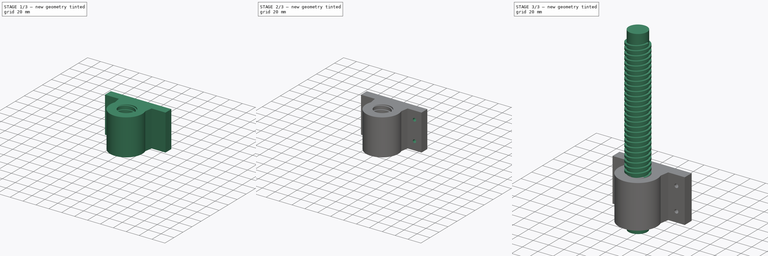
[diagram: build sequence overview — one tinted view per stage of 3, left to right]
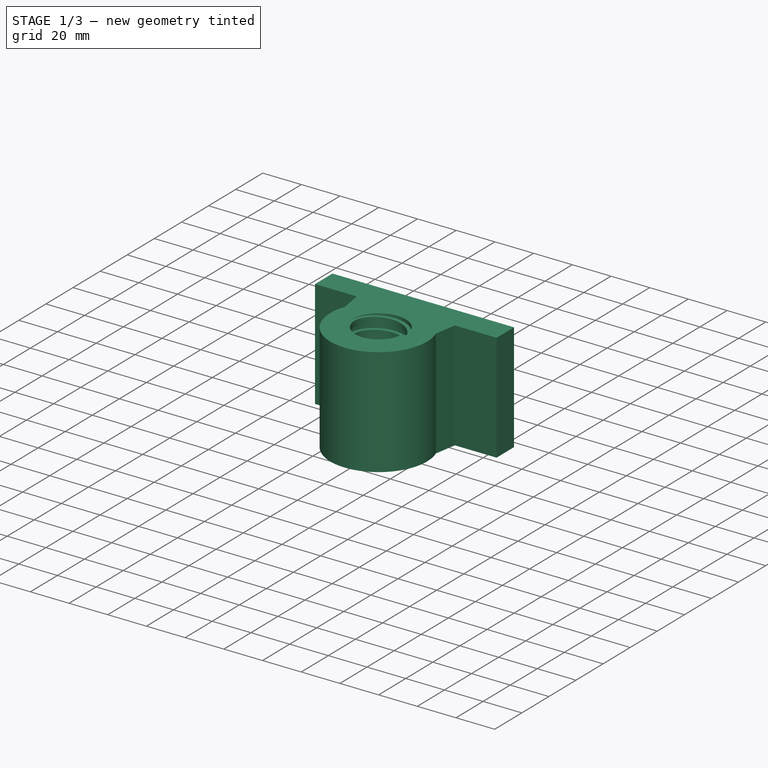
[diagram: stage 1 of 3 — iso view after this stage's code; geometry added in this stage tinted green]
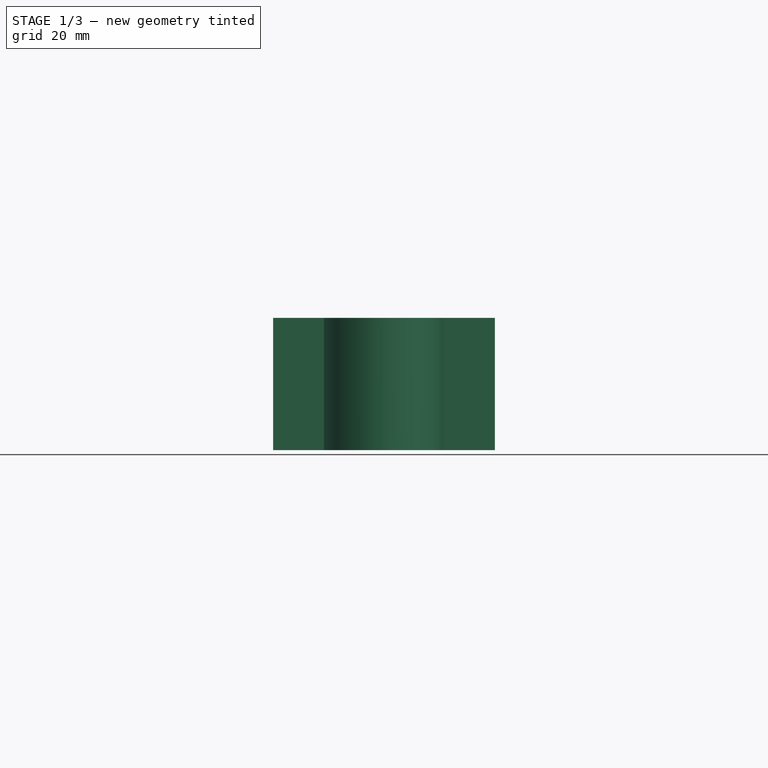
[diagram: stage 1 of 3 — front view after this stage's code; geometry added in this stage tinted green]
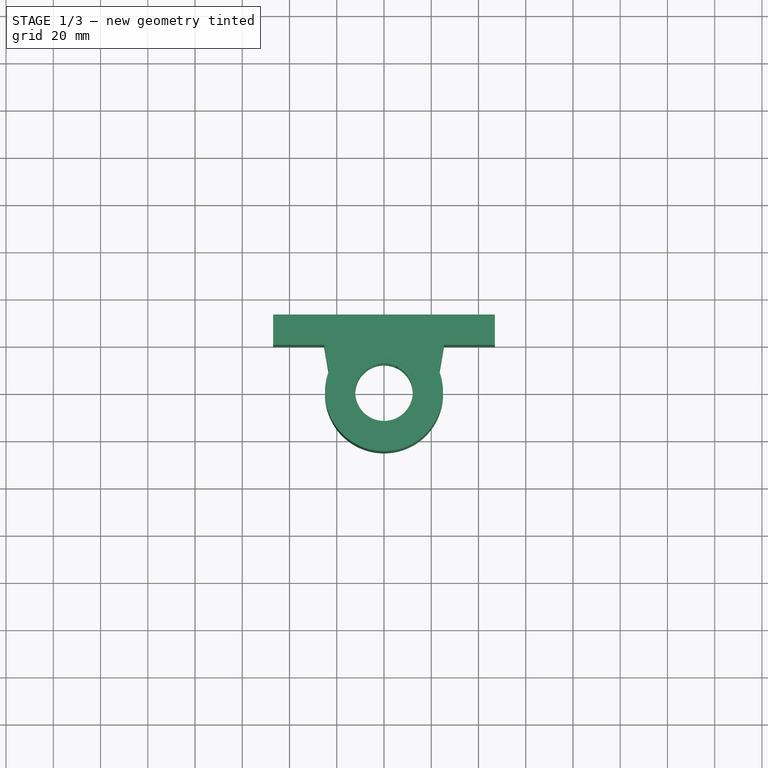
[diagram: stage 1 of 3 — top view after this stage's code; geometry added in this stage tinted green]
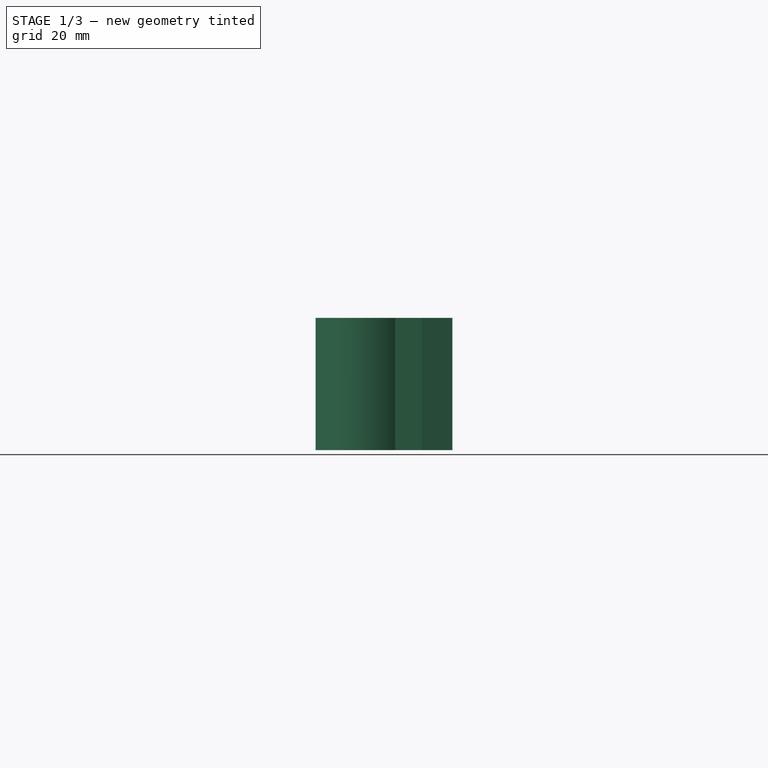
[diagram: stage 1 of 3 — right view after this stage's code; geometry added in this stage tinted green]
FCSTD DOCUMENT  (FreeCAD 0.21R33771 (Git))
Label: ACME
License: All rights reserved
LicenseURL: http://en.wikipedia.org/wiki/All_rights_reserved
objects: Sketcher::SketchObject×5, Part::Helix×2, PartDesign::Pad×2, PartDesign::ShapeBinder×2, PartDesign::CoordinateSystem×2, PartDesign::Body×2, App::Part×2, PartDesign::FeatureBase×1, PartDesign::AdditivePipe×1, PartDesign::SubtractivePipe×1, PartDesign::Pocket×1
note: 24 computed .brp shape members not serialized (recipe doc carries the construction recipe); baked Part::Feature solids carry a one-line shape summary decoded from their .brp

FEATURE [Sketcher::SketchObject] Sketch002
  AttachmentOffset = pos=(0,0,2) rot=(0,0,1;0rad)
  FullyConstrained = true
  MapMode = 5
  Placement = pos=(0,0,2) rot=(0,0,1;0rad)
  Support = -> [XY_Plane003]
  sketch-geometry (9):
    g0: LineSegment StartX=-46.9145 StartY=32.8571 StartZ=0 EndX=46.9145 EndY=32.8571 EndZ=0
    g1: LineSegment StartX=46.9145 StartY=32.8571 StartZ=0 EndX=46.9145 EndY=20.0023 EndZ=0
    g2: LineSegment StartX=46.9145 StartY=20.0023 StartZ=0 EndX=25.3779 EndY=20.0023 EndZ=0
    g3: LineSegment StartX=-46.9145 StartY=20.0023 StartZ=0 EndX=-46.9145 EndY=32.8571 EndZ=0
    g4: LineSegment StartX=-25.3779 StartY=20.0023 StartZ=0 EndX=-46.9145 EndY=20.0023 EndZ=0
    g5: ArcOfCircle CenterX=0 CenterY=0 CenterZ=0 NormalX=0 NormalY=0 NormalZ=1 AngleXU=0 Radius=25 StartAngle=2.78845 EndAngle=6.63632
    g6: Circle CenterX=0 CenterY=0 CenterZ=0 NormalX=0 NormalY=0 NormalZ=1 AngleXU=0 Radius=12.175
    g7: LineSegment StartX=-25.3779 StartY=20.0023 StartZ=0 EndX=-23.4573 EndY=8.6461 EndZ=0
    g8: LineSegment StartX=25.3779 StartY=20.0023 StartZ=0 EndX=23.4573 EndY=8.6461 EndZ=0
  constraints (25):
    c: Diameter(g5) = 50
    c: Coincident(g6,g5)
    c: Diameter(g6) = 24.35
    c: Horizontal(g4)
    c: DistanceY(g3,g3) = 12.8548
    c: Coincident(g3,g4)
    c: Horizontal(g3,g1)
    c: Horizontal(g2)
    c: DistanceX(g3,g1) = 93.8289
    c: Coincident(g1,g2)
    c: DistanceX(g4,g4) = 21.5366
    c: Vertical(g1)
    c: Equal(g4,g2)
    c: Vertical(g3)
    c: Coincident(g0,g1)
    c: Coincident(g0,g3)
    c: Symmetric(g0,g0,g-2)
    c: Coincident(g7,g4)
    c: Coincident(g7,g5)
    c: Coincident(g8,g2)
    c: Coincident(g8,g5)
    c: DistanceY(g5,g4) = 20.0023
    c: Coincident(g5,g-1)
    c: Horizontal(g5,g5)
    c: DistanceY(g5,g5) = 8.6461
FEATURE [PartDesign::Pad] Pad001  label="Carriage Pad"
  Direction = (0,0,1)
  Length = 56
  Length2 = 10
  Profile = -> Sketch002
  ReferenceAxis = -> Sketch002 [N_Axis]
  Type = 0
FEATURE [Part::Helix] Helix001
  Angle = 0
  AttacherType = Attacher::AttachEngine3D
  Height = 65
  LocalCoord = 0
  Pitch = 6
  Placement = pos=(0,0,-5) rot=(0,0,1;0rad)
  Radius = 12.5
  SegmentLength = 0
  Style = 1
FEATURE [Sketcher::SketchObject] Sketch003
  FullyConstrained = true
  MapMode = 5
  Placement = pos=(0,0,0) rot=(1,0,0;1.5708rad)
  sketch-geometry (4):
    g0: LineSegment StartX=11 StartY=4 StartZ=0 EndX=14 EndY=4 EndZ=0
    g1: LineSegment StartX=14 StartY=4 StartZ=0 EndX=14 EndY=1 EndZ=0
    g2: LineSegment StartX=14 StartY=1 StartZ=0 EndX=11 EndY=1 EndZ=0
    g3: LineSegment StartX=11 StartY=1 StartZ=0 EndX=11 EndY=4 EndZ=0
  constraints (12):
    c: Coincident(g0,g1)
    c: Coincident(g1,g2)
    c: Coincident(g2,g3)
    c: Coincident(g3,g0)
    c: Horizontal(g0)
    c: Horizontal(g2)
    c: Vertical(g1)
    c: Vertical(g3)
    c: DistanceX(g-1,g2) = 11
    c: DistanceY(g-1,g1) = 1
    c: DistanceY(g3,g3) = 3
    c: DistanceX(g0,g0) = 3
FEATURE [PartDesign::ShapeBinder] ReferenceHelix001
  Placement = pos=(0,0,-5) rot=(0,0,1;0rad)
  Support = -> [Helix001]
  TraceSupport = false
FEATURE [PartDesign::SubtractivePipe] SubtractivePipe  label="Carriage SubtractivePipe"
  AuxilleryCurvelinear = true
  AuxillerySpineTangent = false
  BaseFeature = -> Pad001
  Binormal = (0,0,0)
  Mode = 2
  Profile = -> Sketch003
  Spine = -> ReferenceHelix001
  SpineTangent = false
  Transformation = 0
  Transition = 0
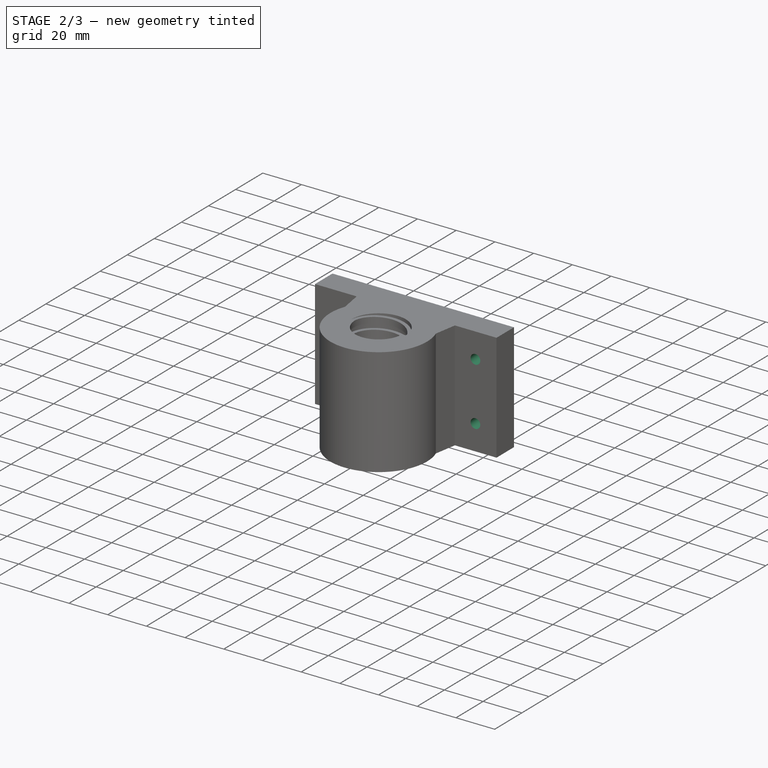
[diagram: stage 2 of 3 — iso view after this stage's code; geometry added in this stage tinted green]
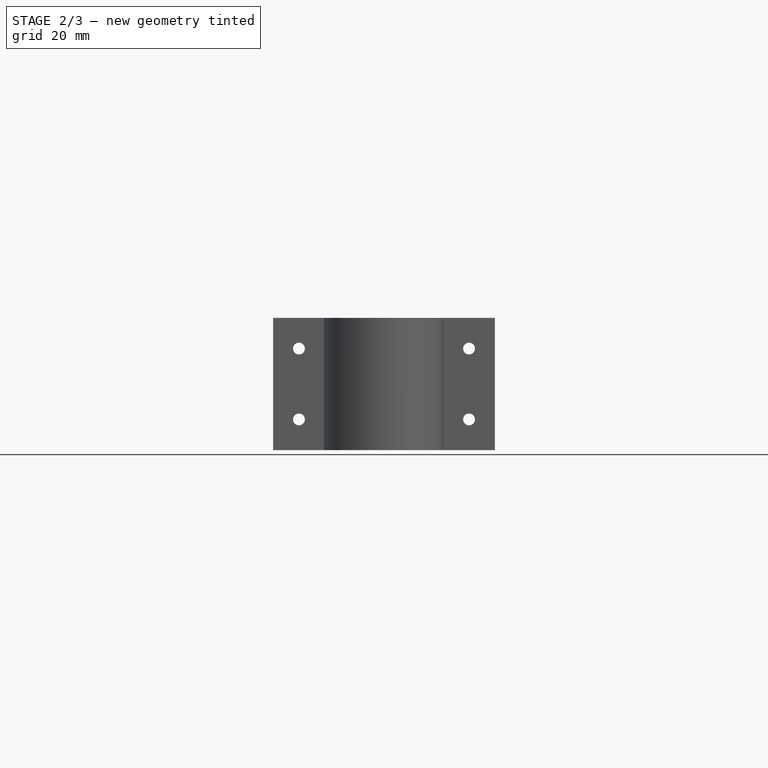
[diagram: stage 2 of 3 — front view after this stage's code; geometry added in this stage tinted green]
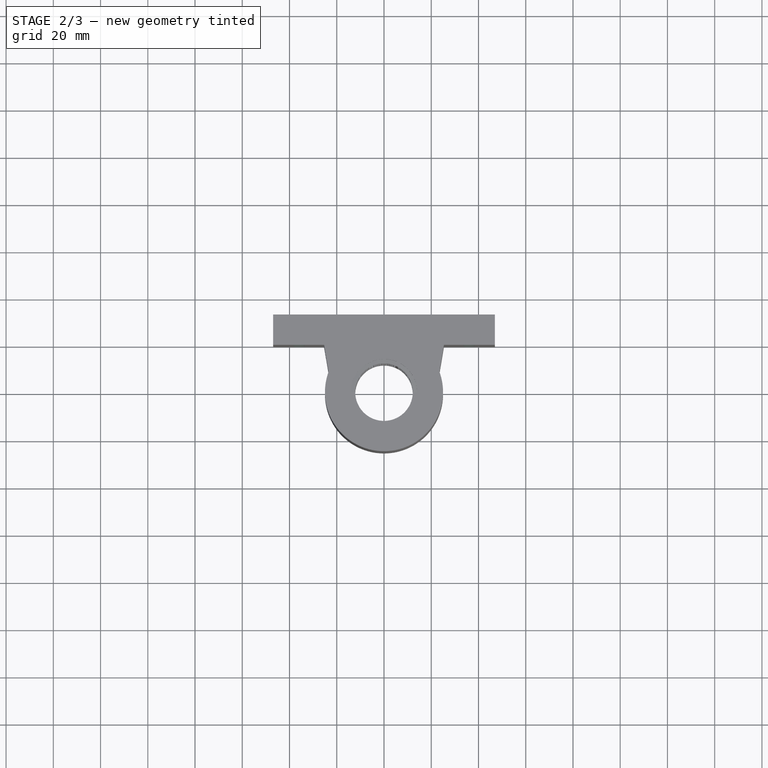
[diagram: stage 2 of 3 — top view after this stage's code; geometry added in this stage tinted green]
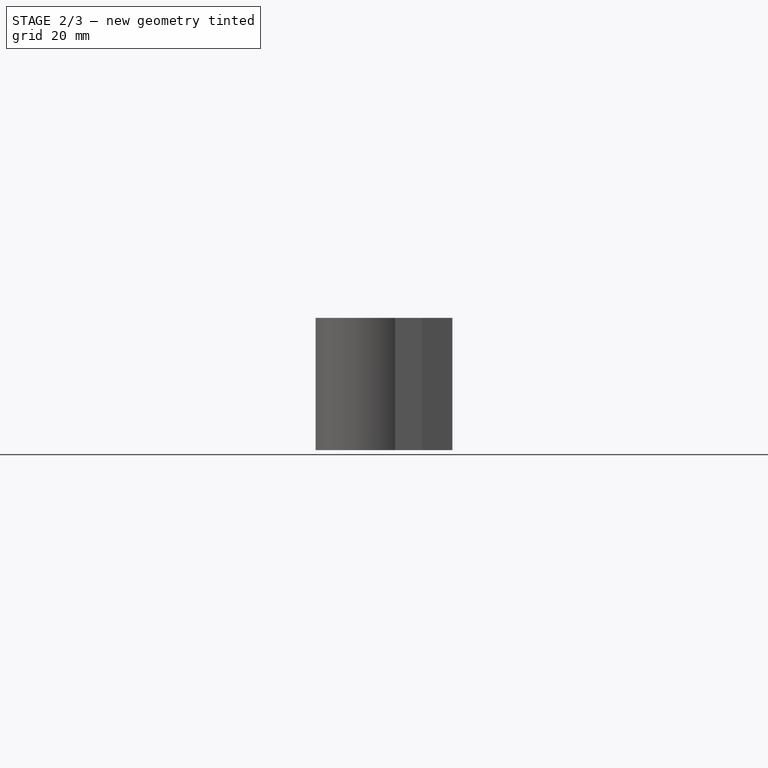
[diagram: stage 2 of 3 — right view after this stage's code; geometry added in this stage tinted green]
FEATURE [Sketcher::SketchObject] Sketch004
  FullyConstrained = true
  MapMode = 5
  Placement = pos=(0,0,0) rot=(1,0,0;1.5708rad)
  Support = -> [XZ_Plane003]
  sketch-geometry (4):
    g0: Circle CenterX=-36 CenterY=45 CenterZ=0 NormalX=0 NormalY=0 NormalZ=1 AngleXU=0 Radius=2.5
    g1: Circle CenterX=-36 CenterY=15 CenterZ=0 NormalX=0 NormalY=0 NormalZ=1 AngleXU=0 Radius=2.5
    g2: Circle CenterX=36 CenterY=45 CenterZ=0 NormalX=0 NormalY=0 NormalZ=1 AngleXU=0 Radius=2.5
    g3: Circle CenterX=36 CenterY=15 CenterZ=0 NormalX=0 NormalY=0 NormalZ=1 AngleXU=0 Radius=2.5
  constraints (12):
    c: Diameter(g0) = 5
    c: Equal(g0,g2)
    c: Equal(g2,g1)
    c: Equal(g1,g3)
    c: Horizontal(g0,g2)
    c: Horizontal(g1,g3)
    c: Vertical(g0,g1)
    c: DistanceY(g-1,g1) = 15
    c: DistanceY(g-1,g0) = 45
    c: DistanceX(g1,g-1) = 36
    c: Vertical(g2,g3)
    c: DistanceX(g0,g2) = 72
FEATURE [PartDesign::Pocket] Pocket  label="Carriage Pocket"
  BaseFeature = -> SubtractivePipe
  Direction = (0,1,2e-16)
  Length = 5
  Length2 = 5
  Profile = -> Sketch004
  ReferenceAxis = -> Sketch004 [N_Axis]
  Type = 1
FEATURE [PartDesign::CoordinateSystem] CarriageCenterHole
  AttacherType = Attacher::AttachEngine3D
  MapMode = 11
  Placement = pos=(0,0,2) rot=(0,0,1;1.5708rad)
  Support = -> [Sketch002]
FEATURE [PartDesign::Body] Body001  label="Carriage Body"
  Group = -> [Sketch002,Pad001,Sketch003,SubtractivePipe,ReferenceHelix001,Sketch004,Pocket,CarriageCenterHole]
  Origin = -> Origin003
  Tip = -> Pocket
FEATURE [App::Part] Part001  label="Carriage Part"
  Group = -> [Helix001,Body001]
  Origin = -> Origin002
FEATURE [PartDesign::CoordinateSystem] LeadScrew
  AttacherType = Attacher::AttachEngine3D
  MapMode = 11
  Placement = pos=(0,0,-8) rot=(0,0,1;1.5708rad)
  Support = -> [Sketch]
FEATURE [PartDesign::Body] Body  label="Lead Screw Body"
  BaseFeature = -> Helix
  Group = -> [BaseFeature,Sketch,Pad,Sketch001,AdditivePipe,ReferenceHelix,LeadScrew]
  Origin = -> Origin
  Tip = -> AdditivePipe
FEATURE [App::Part] Part  label="Lead Screw"
  Group = -> [Helix,Body]
  Origin = -> Origin001
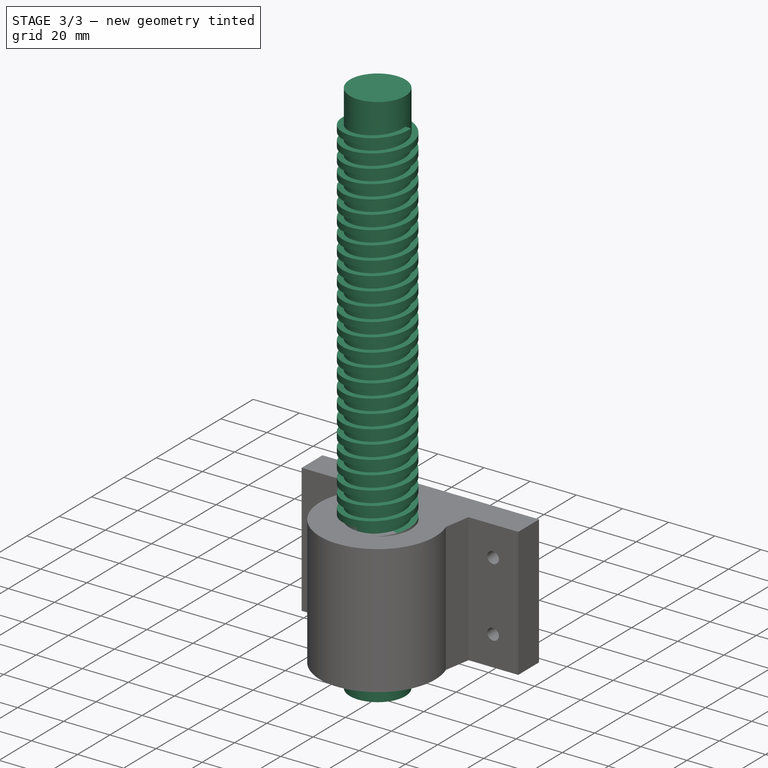
[diagram: stage 3 of 3 — iso view after this stage's code; geometry added in this stage tinted green]
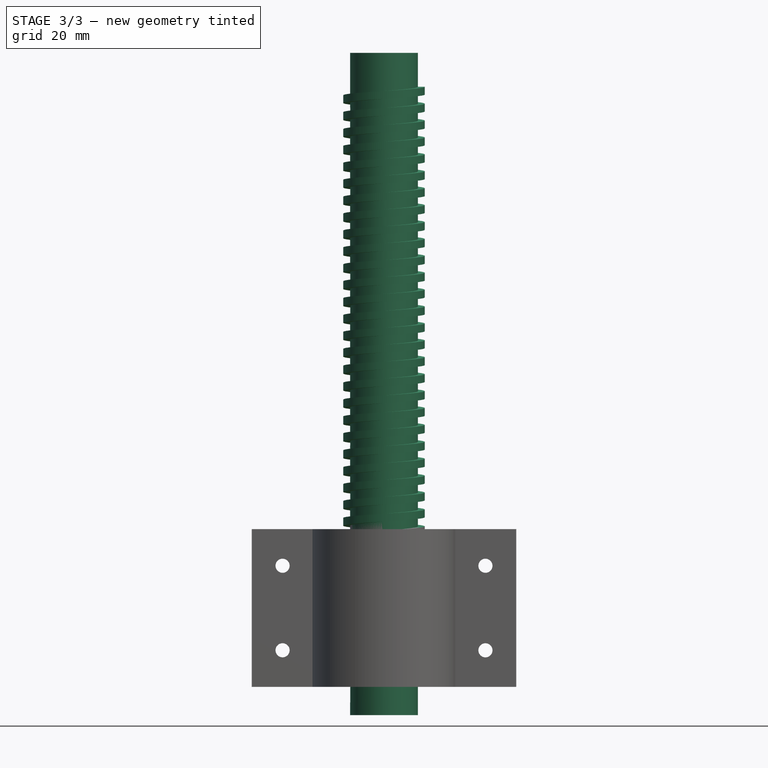
[diagram: stage 3 of 3 — front view after this stage's code; geometry added in this stage tinted green]
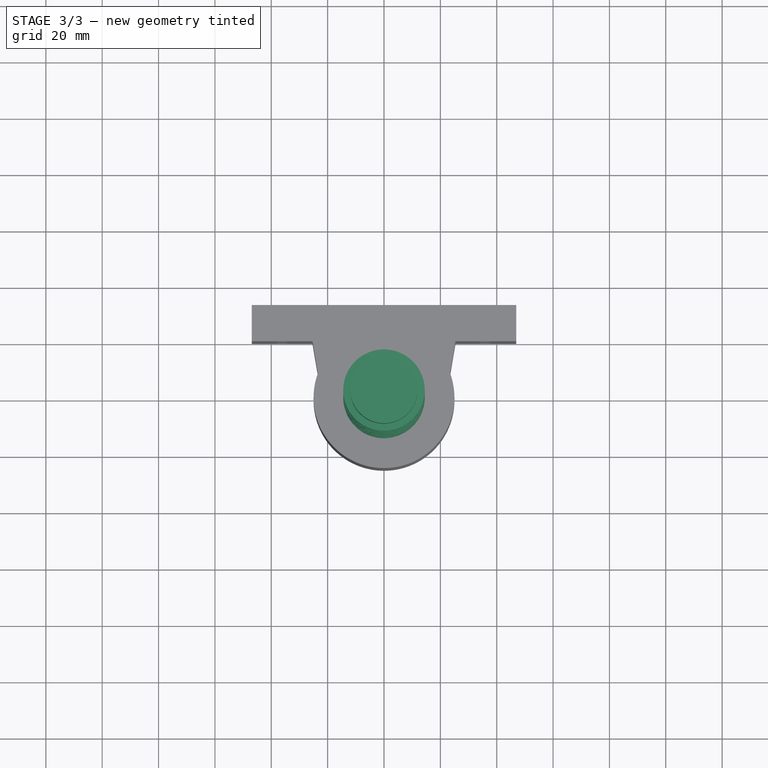
[diagram: stage 3 of 3 — top view after this stage's code; geometry added in this stage tinted green]
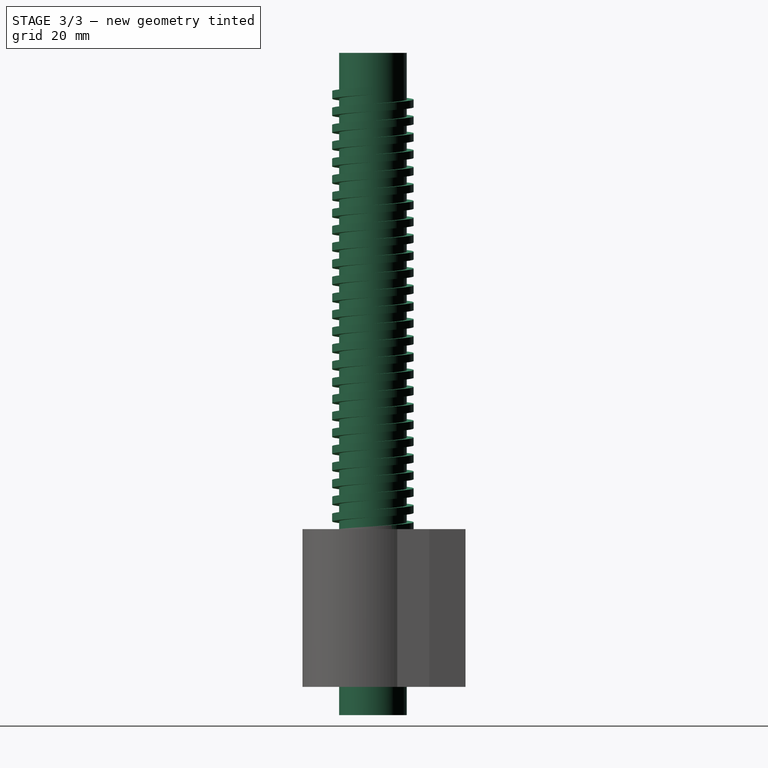
[diagram: stage 3 of 3 — right view after this stage's code; geometry added in this stage tinted green]
FEATURE [Part::Helix] Helix
  Angle = 0
  AttacherType = Attacher::AttachEngine3D
  Height = 210
  LocalCoord = 0
  Pitch = 6
  Placement = pos=(0,0,14) rot=(0,0,1;0rad)
  Radius = 12.5
  SegmentLength = 0
  Style = 1
FEATURE [PartDesign::FeatureBase] BaseFeature
  BaseFeature = -> Helix
FEATURE [Sketcher::SketchObject] Sketch
  AttachmentOffset = pos=(0,0,-8) rot=(0,0,1;0rad)
  FullyConstrained = true
  MapMode = 5
  Placement = pos=(0,0,-8) rot=(0,0,1;0rad)
  Support = -> [XY_Plane]
  sketch-geometry (1):
    g0: Circle CenterX=0 CenterY=0 CenterZ=0 NormalX=0 NormalY=0 NormalZ=1 AngleXU=0 Radius=12
  constraints (2):
    c: Coincident(g0,g-1)
    c: Diameter(g0) = 24
FEATURE [PartDesign::Pad] Pad  label="Lead Screw Pad"
  BaseFeature = -> BaseFeature
  Direction = (0,0,1)
  Length = 235
  Length2 = 10
  Profile = -> Sketch
  ReferenceAxis = -> Sketch [N_Axis]
  Type = 0
FEATURE [Sketcher::SketchObject] Sketch001
  FullyConstrained = true
  MapMode = 5
  Placement = pos=(0,0,0) rot=(1,0,0;1.5708rad)
  Support = -> [XZ_Plane]
  sketch-geometry (4):
    g0: LineSegment StartX=11.6629 StartY=4.968 StartZ=0 EndX=14.4576 EndY=4.968 EndZ=0
    g1: LineSegment StartX=14.4576 StartY=4.968 StartZ=0 EndX=14.4576 EndY=2.218 EndZ=0
    g2: LineSegment StartX=14.4576 StartY=2.218 StartZ=0 EndX=11.6629 EndY=2.218 EndZ=0
    g3: LineSegment StartX=11.6629 StartY=2.218 StartZ=0 EndX=11.6629 EndY=4.968 EndZ=0
  constraints (12):
    c: Coincident(g0,g1)
    c: Coincident(g1,g2)
    c: Coincident(g2,g3)
    c: Coincident(g3,g0)
    c: Horizontal(g0)
    c: Horizontal(g2)
    c: Vertical(g1)
    c: Vertical(g3)
    c: DistanceY(g3,g3) = 2.75
    c: DistanceX(g-1,g2) = 11.6629
    c: DistanceX(g0,g0) = 2.7947
    c: DistanceY(g-1,g2) = 2.218
FEATURE [PartDesign::ShapeBinder] ReferenceHelix
  Placement = pos=(0,0,14) rot=(0,0,1;0rad)
  Support = -> [Helix]
  TraceSupport = false
FEATURE [PartDesign::AdditivePipe] AdditivePipe  label="Lead Screw AdditivePipe"
  AuxilleryCurvelinear = true
  AuxillerySpineTangent = false
  BaseFeature = -> Pad
  Binormal = (0,0,0)
  Mode = 2
  Profile = -> Sketch001
  Spine = -> ReferenceHelix
  SpineTangent = false
  Transformation = 0
  Transition = 0
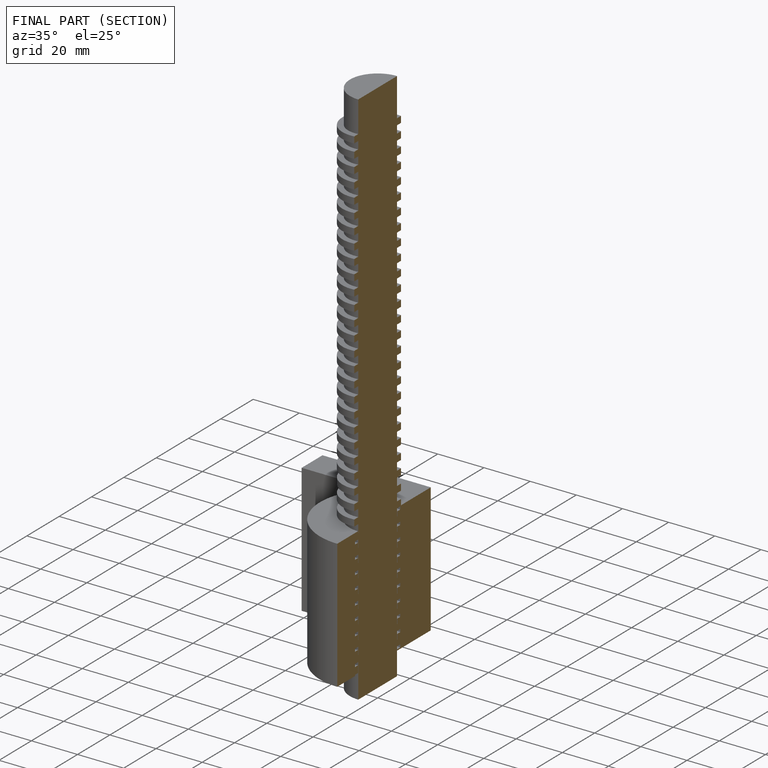
[diagram: finished part — half-section view (interior)]
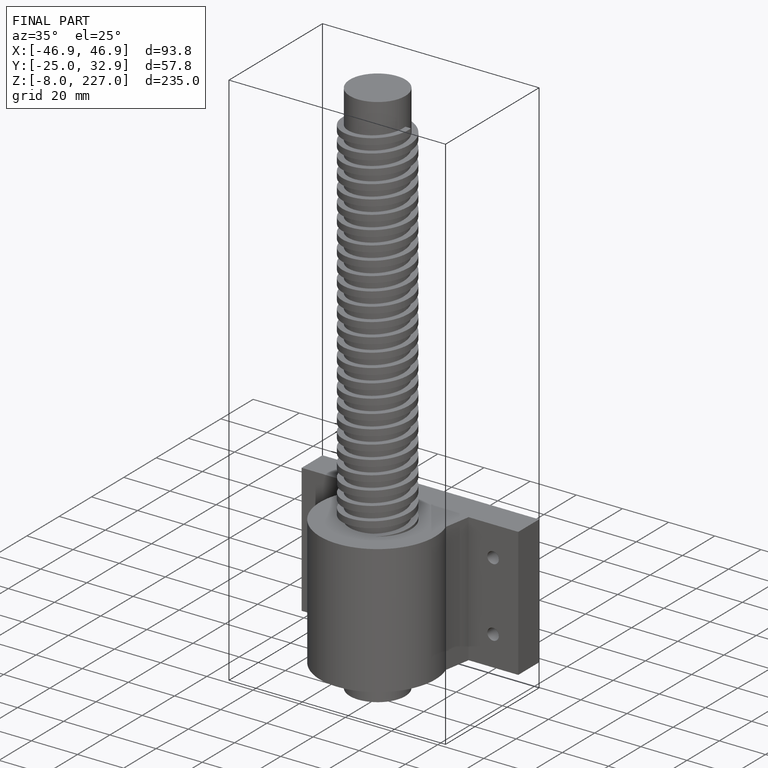
[diagram: finished part — iso view with bounding-box wireframe]
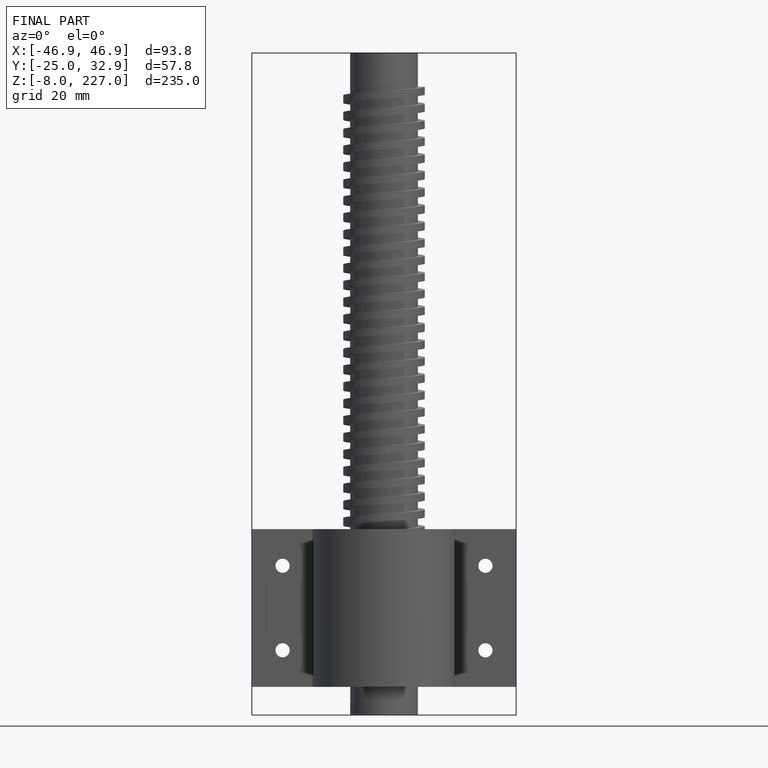
[diagram: finished part — front view with bounding-box wireframe]
